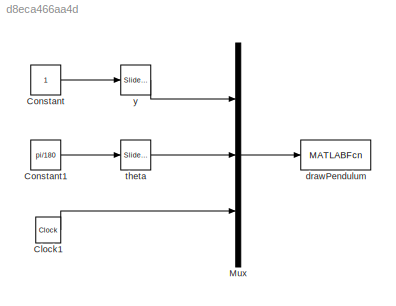
MODEL slx_d8eca466aa4d
KIND model
CONFIG AbsTol = auto
CONFIG EnableMultiTasking = off
CONFIG FixedStep = 0.01
CONFIG MaxStep = auto
CONFIG MinStep = auto
CONFIG RelTol = 1e-3
CONFIG SampleTimeConstraint = Unconstrained
CONFIG Solver = ode4
CONFIG SolverName = ode4
CONFIG StartTime = 0.0
CONFIG StopTime = 600000
BLOCK [Clock] Clock1
BLOCK [Constant] Constant
BLOCK [Constant] Constant1
  Value = pi/180
BLOCK [Mux] Mux
  DisplayOption = bar
  Inputs = 3
  Ports = [3, 1]
BLOCK [MATLABFcn] drawPendulum
  MATLABFcn = drawPendulum(u)
  Output1D = off
  OutputDimensions = 0
  Ports = [1]
BLOCK [Reference] theta  REF=simulink/Math
Operations/Slider
Gain
  Ports = [1, 1]
  SourceBlock = simulink/Math\nOperations/Slider\nGain
  SourceProductBaseCode = SL
  SourceProductName = Simulink
  SourceType = Slider Gain
BLOCK [Reference] y  REF=simulink/Math
Operations/Slider
Gain
  Ports = [1, 1]
  SourceBlock = simulink/Math\nOperations/Slider\nGain
  SourceProductBaseCode = SL
  SourceProductName = Simulink
  SourceType = Slider Gain
LINE Clock1:1 -> Mux:3
LINE Constant1:1 -> theta:1
LINE Constant:1 -> y:1
LINE Mux:1 -> drawPendulum:1
LINE theta:1 -> Mux:2
LINE y:1 -> Mux:1
